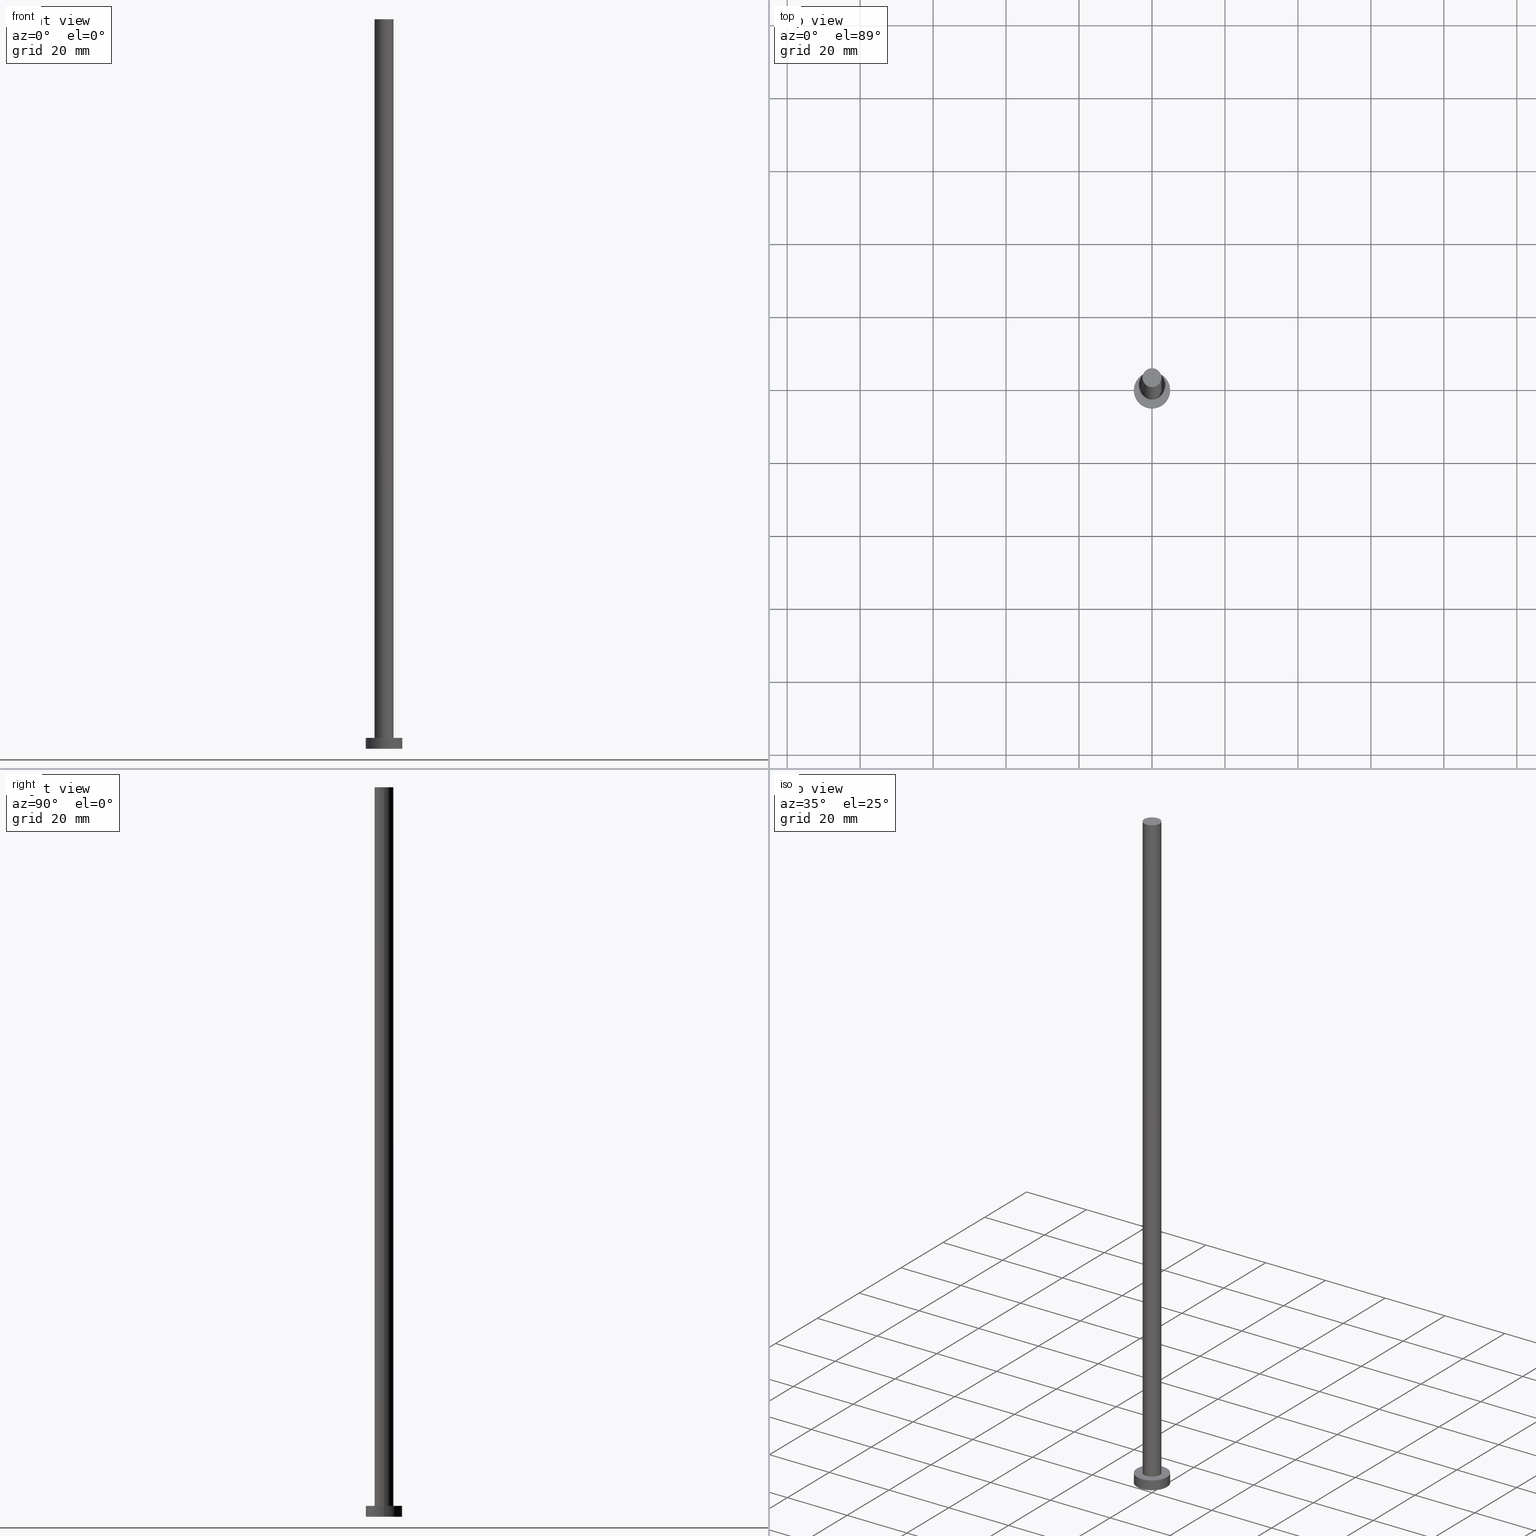
[diagram: canonical four-view strip — front | top / right | iso, engineering-drawing reading convention]
A machine part, canonical four-view strip (front | top / right | iso — engineering-drawing reading convention). The complete STEP part file that produces these views, byte-faithful:
ISO-10303-21;
HEADER;
FILE_DESCRIPTION (( 'STEP AP203' ),
    '1' );
FILE_NAME ('2333.STEP',
    '2023-02-12T12:27:47',
    ( '' ),
    ( '' ),
    'SwSTEP 2.0',
    'SolidWorks 2019',
    '' );
FILE_SCHEMA (( 'CONFIG_CONTROL_DESIGN' ));
ENDSEC;

DATA;
#1 = CLOSED_SHELL ( 'NONE', ( #151, #191, #128, #83, #250, #220, #188 ) ) ;
#2 = EDGE_CURVE ( 'NONE', #66, #246, #89, .T. ) ;
#3 = CC_DESIGN_PERSON_AND_ORGANIZATION_ASSIGNMENT ( #221, #67, ( #247 ) ) ;
#4 = FACE_OUTER_BOUND ( 'NONE', #14, .T. ) ;
#5 = FACE_OUTER_BOUND ( 'NONE', #183, .T. ) ;
#6 = DIRECTION ( 'NONE',  ( 0.000000000000000000, 0.000000000000000000, 1.000000000000000000 ) ) ;
#7 = DATE_AND_TIME ( #243, #255 ) ;
#8 = EDGE_LOOP ( 'NONE', ( #51, #99 ) ) ;
#9 = AXIS2_PLACEMENT_3D ( 'NONE', #216, #96, #60 ) ;
#10 = APPROVAL_ROLE ( '' ) ;
#11 = PERSON_AND_ORGANIZATION_ROLE ( 'creator' ) ;
#12 = EDGE_LOOP ( 'NONE', ( #198, #150 ) ) ;
#13 = DATE_AND_TIME ( #82, #55 ) ;
#14 = EDGE_LOOP ( 'NONE', ( #118, #123, #47, #248 ) ) ;
#15 = ORIENTED_EDGE ( 'NONE', *, *, #156, .F. ) ;
#16 = CC_DESIGN_SECURITY_CLASSIFICATION ( #87, ( #247 ) ) ;
#17 = UNCERTAINTY_MEASURE_WITH_UNIT (LENGTH_MEASURE( 1.000000000000000082E-05 ), #166, 'distance_accuracy_value', 'NONE');
#18 = DIRECTION ( 'NONE',  ( 0.000000000000000000, 0.000000000000000000, 1.000000000000000000 ) ) ;
#19 = EDGE_CURVE ( 'NONE', #49, #66, #185, .T. ) ;
#20 = PRODUCT_DEFINITION_SHAPE ( 'NONE', 'NONE',  #231 ) ;
#21 = DIRECTION ( 'NONE',  ( -0.000000000000000000, -0.000000000000000000, -1.000000000000000000 ) ) ;
#22 = VECTOR ( 'NONE', #58, 1000.000000000000000 ) ;
#23 = DIRECTION ( 'NONE',  ( 0.000000000000000000, 0.000000000000000000, 1.000000000000000000 ) ) ;
#24 = APPLICATION_CONTEXT ( 'configuration controlled 3d designs of mechanical parts and assemblies' ) ;
#25 = FACE_BOUND ( 'NONE', #8, .T. ) ;
#26 = APPROVAL_STATUS ( 'not_yet_approved' ) ;
#27 = EDGE_LOOP ( 'NONE', ( #80, #170, #197, #103 ) ) ;
#28 = PERSON_AND_ORGANIZATION ( #200, #40 ) ;
#29 = VERTEX_POINT ( 'NONE', #127 ) ;
#30 = DATE_AND_TIME ( #46, #232 ) ;
#31 = PERSON_AND_ORGANIZATION ( #200, #40 ) ;
#32 = CIRCLE ( 'NONE', #152, 2.600000000000000089 ) ;
#33 = AXIS2_PLACEMENT_3D ( 'NONE', #54, #203, #208 ) ;
#34 = EDGE_CURVE ( 'NONE', #249, #29, #93, .T. ) ;
#35 = CARTESIAN_POINT ( 'NONE',  ( 0.000000000000000000, 0.000000000000000000, 200.0000000000000000 ) ) ;
#36 = AXIS2_PLACEMENT_3D ( 'NONE', #39, #21, #98 ) ;
#37 = CARTESIAN_POINT ( 'NONE',  ( 5.000000000000000000, 6.123233995736766282E-16, 3.000000000000000000 ) ) ;
#38 = DIRECTION ( 'NONE',  ( 1.000000000000000000, 0.000000000000000000, -0.000000000000000000 ) ) ;
#39 = CARTESIAN_POINT ( 'NONE',  ( 0.000000000000000000, 0.000000000000000000, 3.000000000000000000 ) ) ;
#40 = ORGANIZATION ( 'NEUR�EN�', 'NEUR�EN�', '' ) ;
#41 = VERTEX_POINT ( 'NONE', #187 ) ;
#42 = CARTESIAN_POINT ( 'NONE',  ( 0.000000000000000000, 0.000000000000000000, 3.000000000000000000 ) ) ;
#43 = DIRECTION ( 'NONE',  ( 1.000000000000000000, 0.000000000000000000, -0.000000000000000000 ) ) ;
#44 = APPROVAL_DATE_TIME ( #13, #186 ) ;
#45 = ORIENTED_EDGE ( 'NONE', *, *, #48, .T. ) ;
#46 = CALENDAR_DATE ( 2023, 12, 2 ) ;
#47 = ORIENTED_EDGE ( 'NONE', *, *, #2, .T. ) ;
#48 = EDGE_CURVE ( 'NONE', #49, #141, #251, .T. ) ;
#49 = VERTEX_POINT ( 'NONE', #193 ) ;
#50 = SECURITY_CLASSIFICATION_LEVEL ( 'unclassified' ) ;
#51 = ORIENTED_EDGE ( 'NONE', *, *, #226, .F. ) ;
#52 = APPROVAL_STATUS ( 'not_yet_approved' ) ;
#53 = DIRECTION ( 'NONE',  ( 1.000000000000000000, 0.000000000000000000, 0.000000000000000000 ) ) ;
#54 = CARTESIAN_POINT ( 'NONE',  ( 0.000000000000000000, 0.000000000000000000, 0.000000000000000000 ) ) ;
#55 = LOCAL_TIME ( 13, 27, 47.00000000000000000, #121 ) ;
#56 = LINE ( 'NONE', #37, #129 ) ;
#57 = CC_DESIGN_PERSON_AND_ORGANIZATION_ASSIGNMENT ( #104, #144, ( #252 ) ) ;
#58 = DIRECTION ( 'NONE',  ( -0.000000000000000000, -0.000000000000000000, -1.000000000000000000 ) ) ;
#59 = DIRECTION ( 'NONE',  ( 1.000000000000000000, 0.000000000000000000, 0.000000000000000000 ) ) ;
#60 = DIRECTION ( 'NONE',  ( 1.000000000000000000, 0.000000000000000000, 0.000000000000000000 ) ) ;
#61 = APPLICATION_PROTOCOL_DEFINITION ( 'international standard', 'config_control_design', 1994, #212 ) ;
#62 = AXIS2_PLACEMENT_3D ( 'NONE', #190, #23, #59 ) ;
#63 = APPROVAL_ROLE ( '' ) ;
#64 = DIRECTION ( 'NONE',  ( 1.000000000000000000, 0.000000000000000000, 0.000000000000000000 ) ) ;
#65 = EDGE_CURVE ( 'NONE', #29, #249, #101, .T. ) ;
#66 = VERTEX_POINT ( 'NONE', #112 ) ;
#67 = PERSON_AND_ORGANIZATION_ROLE ( 'creator' ) ;
#68 = PERSON_AND_ORGANIZATION_ROLE ( 'classification_officer' ) ;
#69 = ORIENTED_EDGE ( 'NONE', *, *, #2, .F. ) ;
#70 = AXIS2_PLACEMENT_3D ( 'NONE', #153, #72, #53 ) ;
#71 = CIRCLE ( 'NONE', #184, 5.000000000000000000 ) ;
#72 = DIRECTION ( 'NONE',  ( 0.000000000000000000, 0.000000000000000000, 1.000000000000000000 ) ) ;
#73 = AXIS2_PLACEMENT_3D ( 'NONE', #136, #137, #175 ) ;
#74 = PLANE ( 'NONE',  #219 ) ;
#75 = LINE ( 'NONE', #235, #22 ) ;
#76 = CYLINDRICAL_SURFACE ( 'NONE', #180, 2.600000000000000089 ) ;
#77 = DIRECTION ( 'NONE',  ( -0.000000000000000000, -0.000000000000000000, -1.000000000000000000 ) ) ;
#78 = PLANE ( 'NONE',  #79 ) ;
#79 = AXIS2_PLACEMENT_3D ( 'NONE', #199, #236, #43 ) ;
#80 = ORIENTED_EDGE ( 'NONE', *, *, #154, .F. ) ;
#81 = SHAPE_DEFINITION_REPRESENTATION ( #20, #171 ) ;
#82 = CALENDAR_DATE ( 2023, 12, 2 ) ;
#83 = ADVANCED_FACE ( 'NONE', ( #25, #158 ), #234, .T. ) ;
#84 = PERSON_AND_ORGANIZATION ( #200, #40 ) ;
#85 = ORIENTED_EDGE ( 'NONE', *, *, #34, .F. ) ;
#86 = ORIENTED_EDGE ( 'NONE', *, *, #106, .T. ) ;
#87 = SECURITY_CLASSIFICATION ( '', '', #50 ) ;
#88 = EDGE_CURVE ( 'NONE', #41, #29, #56, .T. ) ;
#89 = LINE ( 'NONE', #90, #119 ) ;
#90 = CARTESIAN_POINT ( 'NONE',  ( -2.600000000000000089, 0.000000000000000000, 200.0000000000000000 ) ) ;
#91 = AXIS2_PLACEMENT_3D ( 'NONE', #147, #201, #228 ) ;
#92 = FACE_OUTER_BOUND ( 'NONE', #27, .T. ) ;
#93 = CIRCLE ( 'NONE', #33, 5.000000000000000000 ) ;
#94 = CARTESIAN_POINT ( 'NONE',  ( 0.000000000000000000, 0.000000000000000000, 3.000000000000000000 ) ) ;
#95 = APPROVAL ( #52, 'NEUR�EN�' ) ;
#96 = DIRECTION ( 'NONE',  ( 0.000000000000000000, 0.000000000000000000, 1.000000000000000000 ) ) ;
#97 = AXIS2_PLACEMENT_3D ( 'NONE', #181, #178, #64 ) ;
#98 = DIRECTION ( 'NONE',  ( -1.000000000000000000, 0.000000000000000000, 0.000000000000000000 ) ) ;
#99 = ORIENTED_EDGE ( 'NONE', *, *, #132, .F. ) ;
#100 = MECHANICAL_CONTEXT ( 'NONE', #212, 'mechanical' ) ;
#101 = CIRCLE ( 'NONE', #73, 5.000000000000000000 ) ;
#102 = APPROVAL_ROLE ( '' ) ;
#103 = ORIENTED_EDGE ( 'NONE', *, *, #106, .F. ) ;
#104 = PERSON_AND_ORGANIZATION ( #200, #40 ) ;
#105 = COORDINATED_UNIVERSAL_TIME_OFFSET ( 1, 0, .AHEAD. ) ;
#106 = EDGE_CURVE ( 'NONE', #124, #249, #75, .T. ) ;
#107 = PERSON_AND_ORGANIZATION ( #200, #40 ) ;
#108 = EDGE_LOOP ( 'NONE', ( #146, #15, #86, #177 ) ) ;
#109 = EDGE_CURVE ( 'NONE', #66, #49, #206, .T. ) ;
#110 = DIRECTION ( 'NONE',  ( -0.000000000000000000, -0.000000000000000000, -1.000000000000000000 ) ) ;
#111 = CARTESIAN_POINT ( 'NONE',  ( 2.600000000000000089, 3.184081677783118191E-16, 200.0000000000000000 ) ) ;
#112 = CARTESIAN_POINT ( 'NONE',  ( -2.600000000000000089, 0.000000000000000000, 200.0000000000000000 ) ) ;
#113 = DIRECTION ( 'NONE',  ( 0.000000000000000000, 0.000000000000000000, 1.000000000000000000 ) ) ;
#114 = CYLINDRICAL_SURFACE ( 'NONE', #36, 5.000000000000000000 ) ;
#115 = CC_DESIGN_APPROVAL ( #134, ( #87 ) ) ;
#116 = DIRECTION ( 'NONE',  ( 1.000000000000000000, 0.000000000000000000, 0.000000000000000000 ) ) ;
#117 = COORDINATED_UNIVERSAL_TIME_OFFSET ( 1, 0, .AHEAD. ) ;
#118 = ORIENTED_EDGE ( 'NONE', *, *, #48, .F. ) ;
#119 = VECTOR ( 'NONE', #110, 1000.000000000000000 ) ;
#120 = CARTESIAN_POINT ( 'NONE',  ( -2.600000000000000089, 0.000000000000000000, 3.000000000000000000 ) ) ;
#121 = COORDINATED_UNIVERSAL_TIME_OFFSET ( 1, 0, .AHEAD. ) ;
#122 = DATE_TIME_ROLE ( 'classification_date' ) ;
#123 = ORIENTED_EDGE ( 'NONE', *, *, #109, .F. ) ;
#124 = VERTEX_POINT ( 'NONE', #135 ) ;
#125 = DESIGN_CONTEXT ( 'detailed design', #24, 'design' ) ;
#126 = CC_DESIGN_DATE_AND_TIME_ASSIGNMENT ( #182, #245, ( #231 ) ) ;
#127 = CARTESIAN_POINT ( 'NONE',  ( 5.000000000000000000, 6.123233995736766282E-16, 0.000000000000000000 ) ) ;
#128 = ADVANCED_FACE ( 'NONE', ( #218 ), #114, .T. ) ;
#129 = VECTOR ( 'NONE', #77, 1000.000000000000000 ) ;
#130 = CC_DESIGN_APPROVAL ( #95, ( #247 ) ) ;
#131 = FACE_OUTER_BOUND ( 'NONE', #12, .T. ) ;
#132 = EDGE_CURVE ( 'NONE', #141, #246, #32, .T. ) ;
#133 = DIRECTION ( 'NONE',  ( 0.000000000000000000, 0.000000000000000000, 1.000000000000000000 ) ) ;
#134 = APPROVAL ( #26, 'NEUR�EN�' ) ;
#135 = CARTESIAN_POINT ( 'NONE',  ( -5.000000000000000000, 0.000000000000000000, 3.000000000000000000 ) ) ;
#136 = CARTESIAN_POINT ( 'NONE',  ( 0.000000000000000000, 0.000000000000000000, 0.000000000000000000 ) ) ;
#137 = DIRECTION ( 'NONE',  ( 0.000000000000000000, 0.000000000000000000, 1.000000000000000000 ) ) ;
#138 =( NAMED_UNIT ( * ) SI_UNIT ( $, .STERADIAN. ) SOLID_ANGLE_UNIT ( ) );
#139 = APPROVAL_PERSON_ORGANIZATION ( #162, #186, #10 ) ;
#140 = APPROVAL_DATE_TIME ( #149, #95 ) ;
#141 = VERTEX_POINT ( 'NONE', #237 ) ;
#142 = CARTESIAN_POINT ( 'NONE',  ( 0.000000000000000000, 0.000000000000000000, 3.000000000000000000 ) ) ;
#143 = AXIS2_PLACEMENT_3D ( 'NONE', #159, #133, #192 ) ;
#144 = PERSON_AND_ORGANIZATION_ROLE ( 'design_owner' ) ;
#145 = PERSON_AND_ORGANIZATION ( #200, #40 ) ;
#146 = ORIENTED_EDGE ( 'NONE', *, *, #88, .F. ) ;
#147 = CARTESIAN_POINT ( 'NONE',  ( 0.000000000000000000, 0.000000000000000000, 200.0000000000000000 ) ) ;
#148 = PERSON_AND_ORGANIZATION_ROLE ( 'design_supplier' ) ;
#149 = DATE_AND_TIME ( #169, #196 ) ;
#150 = ORIENTED_EDGE ( 'NONE', *, *, #19, .T. ) ;
#151 = ADVANCED_FACE ( 'NONE', ( #5 ), #76, .T. ) ;
#152 = AXIS2_PLACEMENT_3D ( 'NONE', #94, #194, #211 ) ;
#153 = CARTESIAN_POINT ( 'NONE',  ( 0.000000000000000000, 0.000000000000000000, 200.0000000000000000 ) ) ;
#154 = EDGE_CURVE ( 'NONE', #41, #124, #254, .T. ) ;
#155 = APPROVAL_PERSON_ORGANIZATION ( #107, #134, #102 ) ;
#156 = EDGE_CURVE ( 'NONE', #124, #41, #71, .T. ) ;
#157 = CARTESIAN_POINT ( 'NONE',  ( 0.000000000000000000, 0.000000000000000000, 3.000000000000000000 ) ) ;
#158 = FACE_OUTER_BOUND ( 'NONE', #242, .T. ) ;
#159 = CARTESIAN_POINT ( 'NONE',  ( 0.000000000000000000, 0.000000000000000000, 3.000000000000000000 ) ) ;
#160 = CARTESIAN_POINT ( 'NONE',  ( 0.000000000000000000, 0.000000000000000000, 200.0000000000000000 ) ) ;
#161 = ORIENTED_EDGE ( 'NONE', *, *, #19, .F. ) ;
#162 = PERSON_AND_ORGANIZATION ( #200, #40 ) ;
#163 = ORIENTED_EDGE ( 'NONE', *, *, #132, .T. ) ;
#164 = ORIENTED_EDGE ( 'NONE', *, *, #156, .T. ) ;
#165 = PRODUCT_RELATED_PRODUCT_CATEGORY ( 'detail', '', ( #252 ) ) ;
#166 =( LENGTH_UNIT ( ) NAMED_UNIT ( * ) SI_UNIT ( .MILLI., .METRE. ) );
#167 = CALENDAR_DATE ( 2023, 12, 2 ) ;
#168 = CC_DESIGN_APPROVAL ( #186, ( #231 ) ) ;
#169 = CALENDAR_DATE ( 2023, 12, 2 ) ;
#170 = ORIENTED_EDGE ( 'NONE', *, *, #88, .T. ) ;
#171 = ADVANCED_BREP_SHAPE_REPRESENTATION ( '2333', ( #238, #97 ), #189 ) ;
#172 = AXIS2_PLACEMENT_3D ( 'NONE', #142, #6, #195 ) ;
#173 = CYLINDRICAL_SURFACE ( 'NONE', #204, 5.000000000000000000 ) ;
#174 = DIRECTION ( 'NONE',  ( -0.000000000000000000, -0.000000000000000000, -1.000000000000000000 ) ) ;
#175 = DIRECTION ( 'NONE',  ( 1.000000000000000000, 0.000000000000000000, 0.000000000000000000 ) ) ;
#176 = DIRECTION ( 'NONE',  ( -1.000000000000000000, 0.000000000000000000, 0.000000000000000000 ) ) ;
#177 = ORIENTED_EDGE ( 'NONE', *, *, #34, .T. ) ;
#178 = DIRECTION ( 'NONE',  ( 0.000000000000000000, 0.000000000000000000, 1.000000000000000000 ) ) ;
#179 = FACE_OUTER_BOUND ( 'NONE', #227, .T. ) ;
#180 = AXIS2_PLACEMENT_3D ( 'NONE', #160, #214, #176 ) ;
#181 = CARTESIAN_POINT ( 'NONE',  ( 0.000000000000000000, 0.000000000000000000, 0.000000000000000000 ) ) ;
#182 = DATE_AND_TIME ( #167, #205 ) ;
#183 = EDGE_LOOP ( 'NONE', ( #161, #45, #163, #69 ) ) ;
#184 = AXIS2_PLACEMENT_3D ( 'NONE', #42, #113, #116 ) ;
#185 = CIRCLE ( 'NONE', #70, 2.600000000000000089 ) ;
#186 = APPROVAL ( #223, 'NEUR�EN�' ) ;
#187 = CARTESIAN_POINT ( 'NONE',  ( 5.000000000000000000, 6.123233995736766282E-16, 3.000000000000000000 ) ) ;
#188 = ADVANCED_FACE ( 'NONE', ( #131 ), #74, .T. ) ;
#189 =( GEOMETRIC_REPRESENTATION_CONTEXT ( 3 ) GLOBAL_UNCERTAINTY_ASSIGNED_CONTEXT ( ( #17 ) ) GLOBAL_UNIT_ASSIGNED_CONTEXT ( ( #166, #217, #138 ) ) REPRESENTATION_CONTEXT ( 'NONE', 'WORKASPACE' ) );
#190 = CARTESIAN_POINT ( 'NONE',  ( 0.000000000000000000, 0.000000000000000000, 200.0000000000000000 ) ) ;
#191 = ADVANCED_FACE ( 'NONE', ( #92 ), #173, .T. ) ;
#192 = DIRECTION ( 'NONE',  ( 1.000000000000000000, 0.000000000000000000, -0.000000000000000000 ) ) ;
#193 = CARTESIAN_POINT ( 'NONE',  ( 2.600000000000000089, 3.184081677783118191E-16, 200.0000000000000000 ) ) ;
#194 = DIRECTION ( 'NONE',  ( 0.000000000000000000, 0.000000000000000000, 1.000000000000000000 ) ) ;
#195 = DIRECTION ( 'NONE',  ( 1.000000000000000000, 0.000000000000000000, 0.000000000000000000 ) ) ;
#196 = LOCAL_TIME ( 13, 27, 47.00000000000000000, #224 ) ;
#197 = ORIENTED_EDGE ( 'NONE', *, *, #65, .T. ) ;
#198 = ORIENTED_EDGE ( 'NONE', *, *, #109, .T. ) ;
#199 = CARTESIAN_POINT ( 'NONE',  ( 0.000000000000000000, 0.000000000000000000, 0.000000000000000000 ) ) ;
#200 = PERSON ( 'NEUR�EN�', 'NEUR�EN�', 'NEUR�EN�', ('NEUR�EN�'), ('NEUR�EN�'), ('NEUR�EN�') ) ;
#201 = DIRECTION ( 'NONE',  ( -0.000000000000000000, -0.000000000000000000, -1.000000000000000000 ) ) ;
#202 = ORIENTED_EDGE ( 'NONE', *, *, #65, .F. ) ;
#203 = DIRECTION ( 'NONE',  ( 0.000000000000000000, 0.000000000000000000, 1.000000000000000000 ) ) ;
#204 = AXIS2_PLACEMENT_3D ( 'NONE', #157, #174, #233 ) ;
#205 = LOCAL_TIME ( 13, 27, 47.00000000000000000, #229 ) ;
#206 = CIRCLE ( 'NONE', #62, 2.600000000000000089 ) ;
#207 = CC_DESIGN_PERSON_AND_ORGANIZATION_ASSIGNMENT ( #28, #148, ( #247 ) ) ;
#208 = DIRECTION ( 'NONE',  ( 1.000000000000000000, 0.000000000000000000, 0.000000000000000000 ) ) ;
#209 = APPROVAL_PERSON_ORGANIZATION ( #145, #95, #63 ) ;
#210 = VECTOR ( 'NONE', #213, 1000.000000000000000 ) ;
#211 = DIRECTION ( 'NONE',  ( 1.000000000000000000, 0.000000000000000000, 0.000000000000000000 ) ) ;
#212 = APPLICATION_CONTEXT ( 'configuration controlled 3d designs of mechanical parts and assemblies' ) ;
#213 = DIRECTION ( 'NONE',  ( -0.000000000000000000, -0.000000000000000000, -1.000000000000000000 ) ) ;
#214 = DIRECTION ( 'NONE',  ( -0.000000000000000000, -0.000000000000000000, -1.000000000000000000 ) ) ;
#215 = CC_DESIGN_DATE_AND_TIME_ASSIGNMENT ( #30, #122, ( #87 ) ) ;
#216 = CARTESIAN_POINT ( 'NONE',  ( 0.000000000000000000, 0.000000000000000000, 3.000000000000000000 ) ) ;
#217 =( NAMED_UNIT ( * ) PLANE_ANGLE_UNIT ( ) SI_UNIT ( $, .RADIAN. ) );
#218 = FACE_OUTER_BOUND ( 'NONE', #108, .T. ) ;
#219 = AXIS2_PLACEMENT_3D ( 'NONE', #35, #18, #38 ) ;
#220 = ADVANCED_FACE ( 'NONE', ( #4 ), #244, .T. ) ;
#221 = PERSON_AND_ORGANIZATION ( #200, #40 ) ;
#222 = ORIENTED_EDGE ( 'NONE', *, *, #154, .T. ) ;
#223 = APPROVAL_STATUS ( 'not_yet_approved' ) ;
#224 = COORDINATED_UNIVERSAL_TIME_OFFSET ( 1, 0, .AHEAD. ) ;
#225 = APPLICATION_PROTOCOL_DEFINITION ( 'international standard', 'config_control_design', 1994, #24 ) ;
#226 = EDGE_CURVE ( 'NONE', #246, #141, #240, .T. ) ;
#227 = EDGE_LOOP ( 'NONE', ( #85, #202 ) ) ;
#228 = DIRECTION ( 'NONE',  ( -1.000000000000000000, 0.000000000000000000, 0.000000000000000000 ) ) ;
#229 = COORDINATED_UNIVERSAL_TIME_OFFSET ( 1, 0, .AHEAD. ) ;
#230 = CC_DESIGN_PERSON_AND_ORGANIZATION_ASSIGNMENT ( #31, #68, ( #87 ) ) ;
#231 = PRODUCT_DEFINITION ( 'NEZN�M�', '', #247, #125 ) ;
#232 = LOCAL_TIME ( 13, 27, 47.00000000000000000, #117 ) ;
#233 = DIRECTION ( 'NONE',  ( -1.000000000000000000, 0.000000000000000000, 0.000000000000000000 ) ) ;
#234 = PLANE ( 'NONE',  #143 ) ;
#235 = CARTESIAN_POINT ( 'NONE',  ( -5.000000000000000000, 0.000000000000000000, 3.000000000000000000 ) ) ;
#236 = DIRECTION ( 'NONE',  ( 0.000000000000000000, 0.000000000000000000, 1.000000000000000000 ) ) ;
#237 = CARTESIAN_POINT ( 'NONE',  ( 2.600000000000000089, 3.184081677783118191E-16, 3.000000000000000000 ) ) ;
#238 = MANIFOLD_SOLID_BREP ( 'P�idat vysunut�m3', #1 ) ;
#239 = CARTESIAN_POINT ( 'NONE',  ( -5.000000000000000000, 0.000000000000000000, 0.000000000000000000 ) ) ;
#240 = CIRCLE ( 'NONE', #172, 2.600000000000000089 ) ;
#241 = APPROVAL_DATE_TIME ( #7, #134 ) ;
#242 = EDGE_LOOP ( 'NONE', ( #164, #222 ) ) ;
#243 = CALENDAR_DATE ( 2023, 12, 2 ) ;
#244 = CYLINDRICAL_SURFACE ( 'NONE', #91, 2.600000000000000089 ) ;
#245 = DATE_TIME_ROLE ( 'creation_date' ) ;
#246 = VERTEX_POINT ( 'NONE', #120 ) ;
#247 = PRODUCT_DEFINITION_FORMATION_WITH_SPECIFIED_SOURCE ( 'LIBOVOLN�', '', #252, .NOT_KNOWN. ) ;
#248 = ORIENTED_EDGE ( 'NONE', *, *, #226, .T. ) ;
#249 = VERTEX_POINT ( 'NONE', #239 ) ;
#250 = ADVANCED_FACE ( 'NONE', ( #179 ), #78, .F. ) ;
#251 = LINE ( 'NONE', #111, #210 ) ;
#252 = PRODUCT ( '2333', '2333', '', ( #100 ) ) ;
#253 = CC_DESIGN_PERSON_AND_ORGANIZATION_ASSIGNMENT ( #84, #11, ( #231 ) ) ;
#254 = CIRCLE ( 'NONE', #9, 5.000000000000000000 ) ;
#255 = LOCAL_TIME ( 13, 27, 47.00000000000000000, #105 ) ;
ENDSEC;
END-ISO-10303-21;
